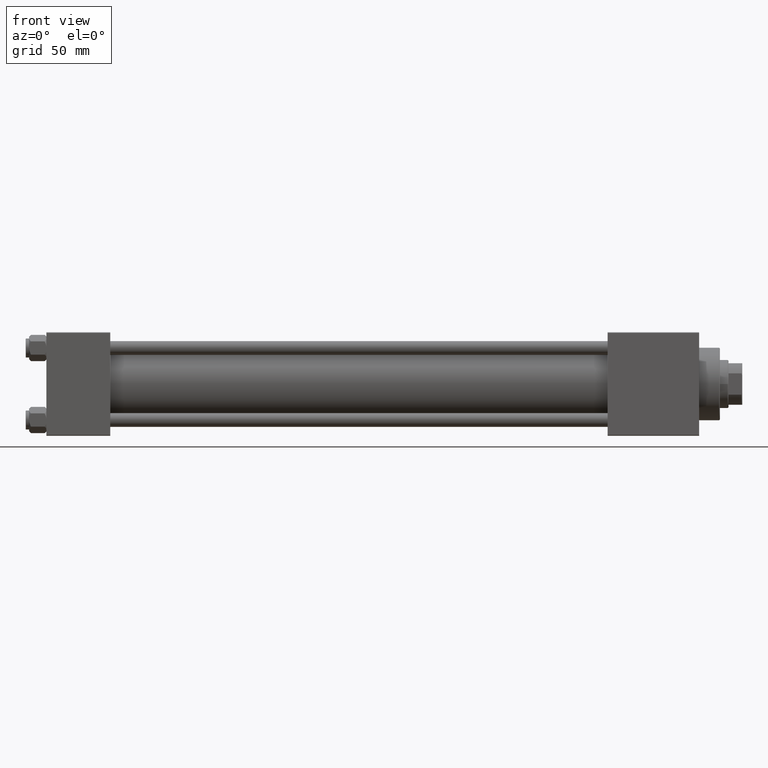
[diagram: clean part render]
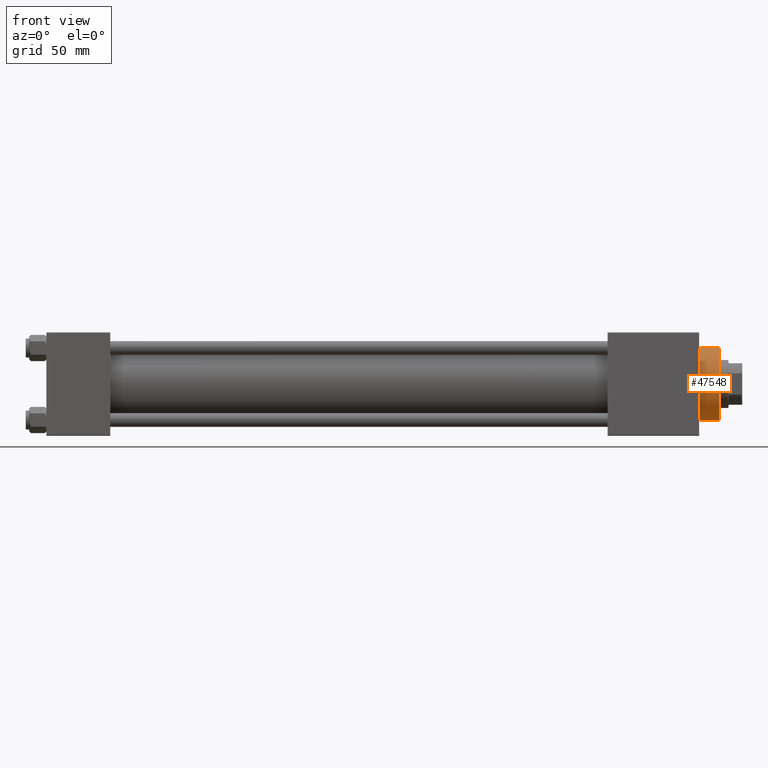
[diagram: same view with one face highlighted and labeled with its STEP entity id]
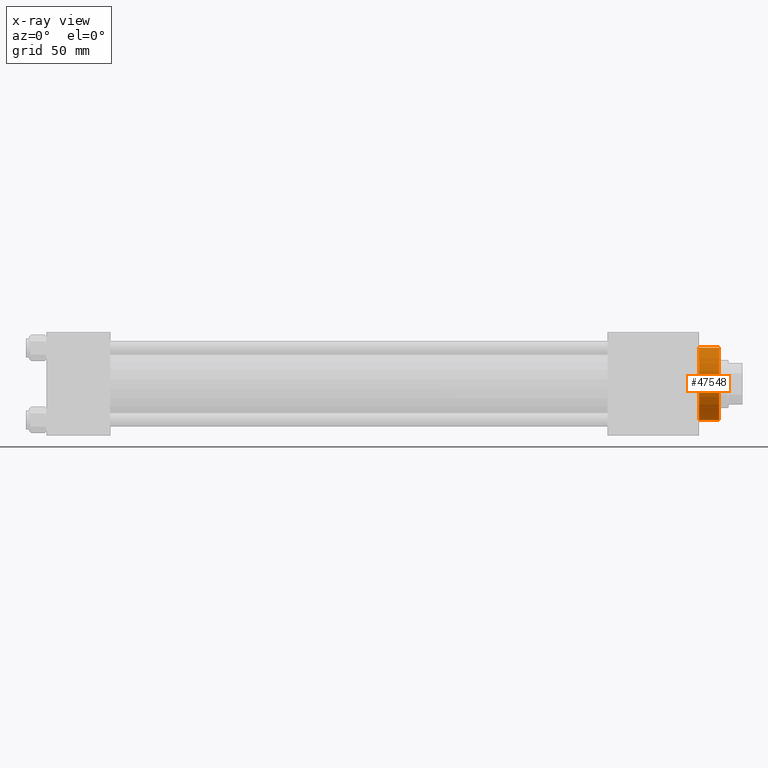
[diagram: x-ray of the same camera — body ghosted, the highlighted face saturated]
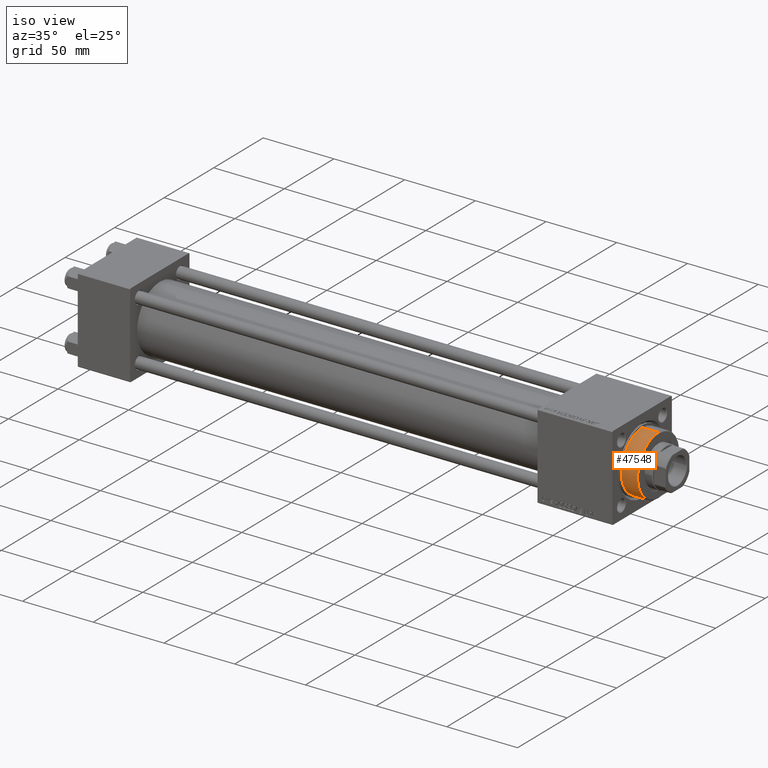
[diagram: same view with one face highlighted and labeled with its STEP entity id]
A machine part, front view. The second image highlights one B-rep face of the part: STEP entity #47548.
The next image is the same camera in x-ray: the body ghosted, the highlighted face saturated — about 0% of this face is hidden behind the body in this view.
A second angle (iso view) of the same face is appended — the face is thin or edge-on in the first view.
In plain terms, the highlighted cylindrical surface (edge-blend (fillet) strip) has radius 21 mm, axis along (-1, -0, -0).
Its self-contained STEP definition (entity closure, byte-faithful):
#311 = ORIENTED_EDGE ( 'NONE', *, *, #33933, .T. ) ;
#1178 = CARTESIAN_POINT ( 'NONE',  ( 0.000000000000000000, 0.000000000000000000, 40.19999999999998863 ) ) ;
#3085 = DIRECTION ( 'NONE',  ( -0.000000000000000000, -0.000000000000000000, -1.000000000000000000 ) ) ;
#4933 = LINE ( 'NONE', #42756, #38801 ) ;
#5806 = AXIS2_PLACEMENT_3D ( 'NONE', #1178, #28352, #10060 ) ;
#8970 = ORIENTED_EDGE ( 'NONE', *, *, #48181, .T. ) ;
#9315 = VERTEX_POINT ( 'NONE', #29156 ) ;
#10060 = DIRECTION ( 'NONE',  ( 1.000000000000000000, 0.000000000000000000, 0.000000000000000000 ) ) ;
#10705 = FACE_OUTER_BOUND ( 'NONE', #32271, .T. ) ;
#11263 = CIRCLE ( 'NONE', #17755, 21.00000000000000000 ) ;
#12463 = VERTEX_POINT ( 'NONE', #35424 ) ;
#13878 = AXIS2_PLACEMENT_3D ( 'NONE', #41661, #3085, #18576 ) ;
#15258 = CARTESIAN_POINT ( 'NONE',  ( -21.00000000000000000, 0.000000000000000000, 40.70000000000000284 ) ) ;
#17755 = AXIS2_PLACEMENT_3D ( 'NONE', #30735, #33546, #49776 ) ;
#18008 = CARTESIAN_POINT ( 'NONE',  ( 21.00000000000000000, 2.571758278209441661E-15, 40.19999999999998863 ) ) ;
#18576 = DIRECTION ( 'NONE',  ( -1.000000000000000000, 0.000000000000000000, 0.000000000000000000 ) ) ;
#18830 = DIRECTION ( 'NONE',  ( -0.000000000000000000, -0.000000000000000000, -1.000000000000000000 ) ) ;
#19732 = ORIENTED_EDGE ( 'NONE', *, *, #41381, .F. ) ;
#20424 = DIRECTION ( 'NONE',  ( -0.000000000000000000, -0.000000000000000000, -1.000000000000000000 ) ) ;
#20628 = CARTESIAN_POINT ( 'NONE',  ( 21.00000000000000000, 2.571758278209441661E-15, 28.69999999999999929 ) ) ;
#26194 = CYLINDRICAL_SURFACE ( 'NONE', #13878, 21.00000000000000000 ) ;
#28352 = DIRECTION ( 'NONE',  ( 0.000000000000000000, 0.000000000000000000, -1.000000000000000000 ) ) ;
#29156 = CARTESIAN_POINT ( 'NONE',  ( -21.00000000000000000, 0.000000000000000000, 40.19999999999998863 ) ) ;
#30603 = VERTEX_POINT ( 'NONE', #20628 ) ;
#30735 = CARTESIAN_POINT ( 'NONE',  ( 0.000000000000000000, 0.000000000000000000, 28.69999999999999929 ) ) ;
#32271 = EDGE_LOOP ( 'NONE', ( #19732, #8970, #311, #44949 ) ) ;
#33546 = DIRECTION ( 'NONE',  ( 0.000000000000000000, 0.000000000000000000, 1.000000000000000000 ) ) ;
#33933 = EDGE_CURVE ( 'NONE', #9315, #12463, #34312, .T. ) ;
#34312 = LINE ( 'NONE', #15258, #46785 ) ;
#35424 = CARTESIAN_POINT ( 'NONE',  ( -21.00000000000000000, 0.000000000000000000, 28.69999999999999929 ) ) ;
#38801 = VECTOR ( 'NONE', #20424, 1000.000000000000000 ) ;
#41381 = EDGE_CURVE ( 'NONE', #42190, #30603, #4933, .T. ) ;
#41661 = CARTESIAN_POINT ( 'NONE',  ( 0.000000000000000000, 0.000000000000000000, 40.70000000000000284 ) ) ;
#41751 = EDGE_CURVE ( 'NONE', #12463, #30603, #11263, .T. ) ;
#42190 = VERTEX_POINT ( 'NONE', #18008 ) ;
#42756 = CARTESIAN_POINT ( 'NONE',  ( 21.00000000000000000, 2.571758278209441661E-15, 40.70000000000000284 ) ) ;
#43887 = CIRCLE ( 'NONE', #5806, 21.00000000000000000 ) ;
#44949 = ORIENTED_EDGE ( 'NONE', *, *, #41751, .T. ) ;
#46785 = VECTOR ( 'NONE', #18830, 1000.000000000000000 ) ;
#47548 = ADVANCED_FACE ( 'NONE', ( #10705 ), #26194, .T. ) ;
#48181 = EDGE_CURVE ( 'NONE', #42190, #9315, #43887, .T. ) ;
#49776 = DIRECTION ( 'NONE',  ( 1.000000000000000000, 0.000000000000000000, 0.000000000000000000 ) ) ;